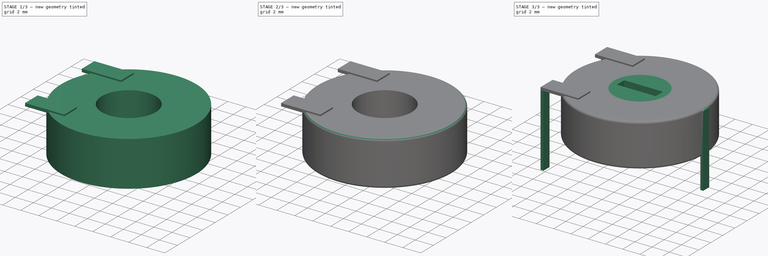
[diagram: build sequence overview — one tinted view per stage of 3, left to right]
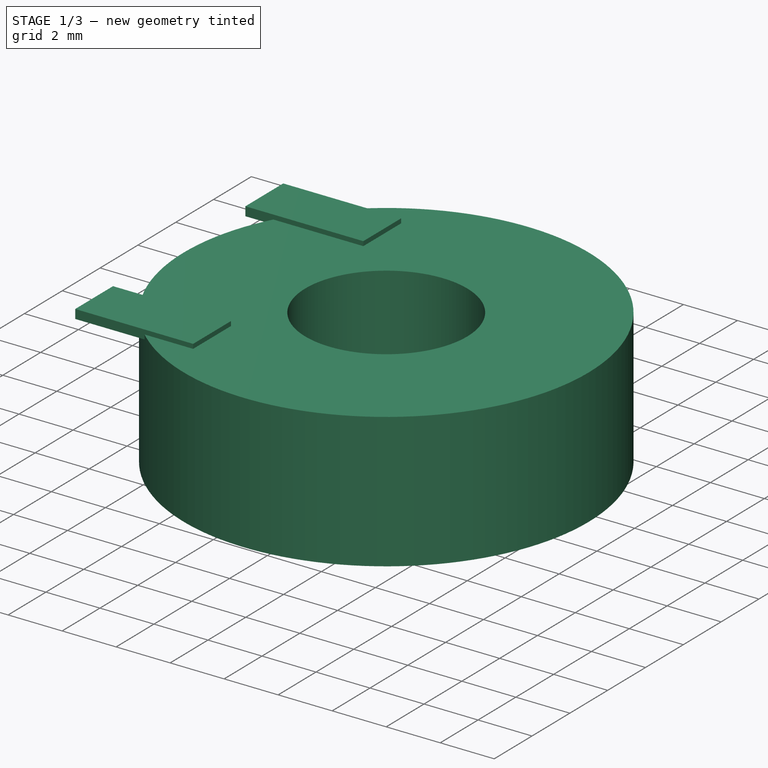
[diagram: stage 1 of 3 — iso view after this stage's code; geometry added in this stage tinted green]
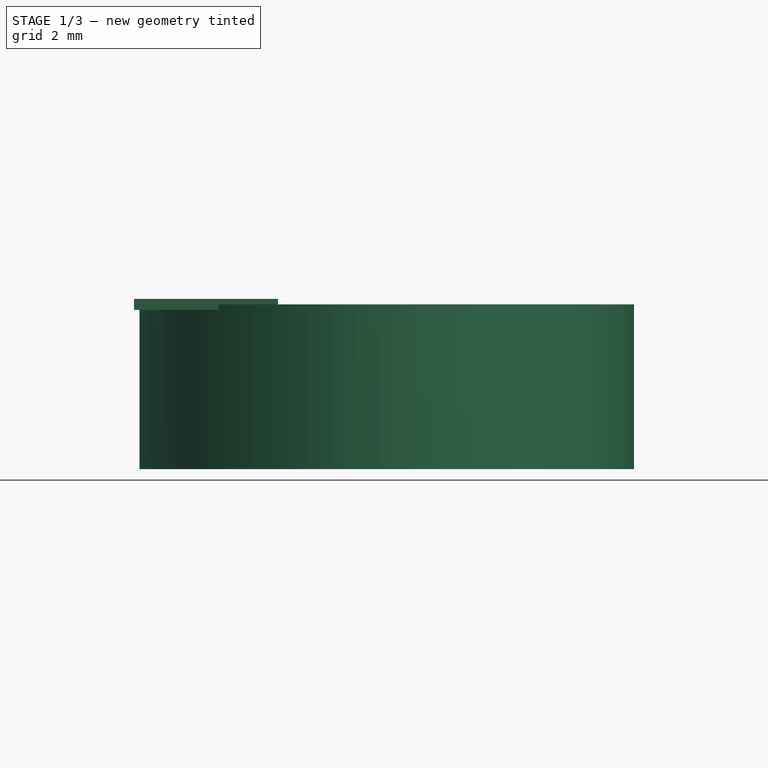
[diagram: stage 1 of 3 — front view after this stage's code; geometry added in this stage tinted green]
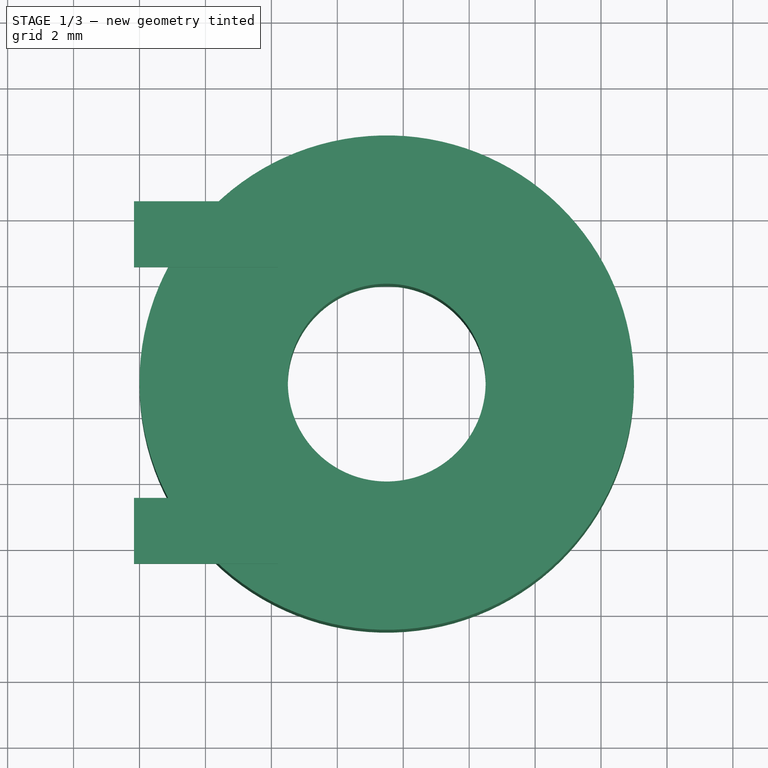
[diagram: stage 1 of 3 — top view after this stage's code; geometry added in this stage tinted green]
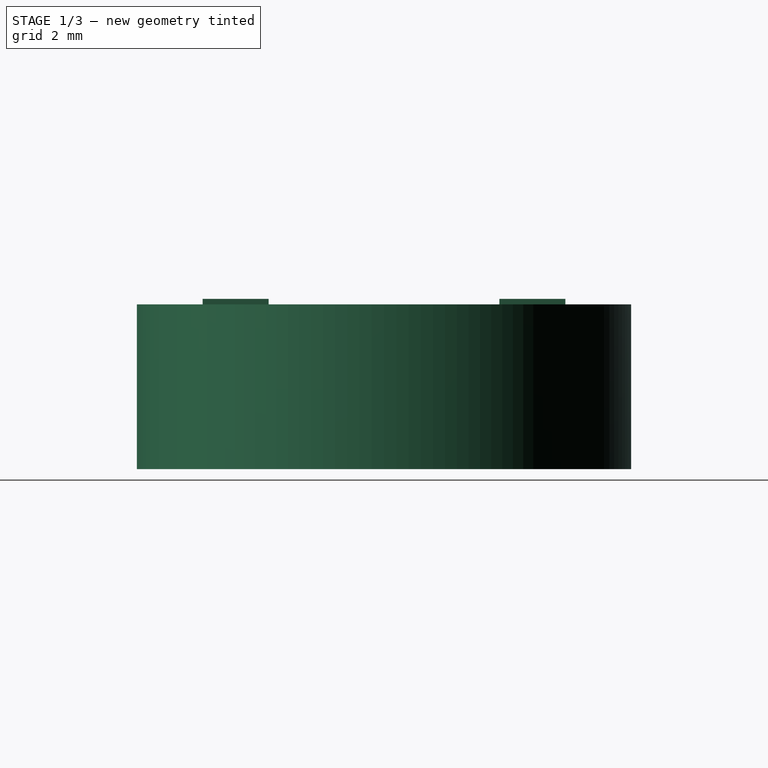
[diagram: stage 1 of 3 — right view after this stage's code; geometry added in this stage tinted green]
FCSTD DOCUMENT  (FreeCAD 0.16R6703 (Git))
Label: Potentiometer_Trimmer_Piher_PT-15v15_Horizontal_Px15.0mm_Py10.0mm
License: All rights reserved
LicenseURL: http://en.wikipedia.org/wiki/All_rights_reserved
objects: Sketcher::SketchObject×4, PartDesign::Pad×4, Spreadsheet::Sheet×1, PartDesign::Fillet×1
note: 13 computed .brp shape members not serialized (recipe doc carries the construction recipe); baked Part::Feature solids carry a one-line shape summary decoded from their .brp

FEATURE [Sketcher::SketchObject] Sketch
  Placement = pos=(0,10,0.5) rot=(0,0,1;0rad)
  expr: Placement.Base.y = 2 * Spreadsheet.rmy
  expr: Constraints[4] = Spreadsheet.rmy
  expr: Constraints[3] = Spreadsheet.clbody_fab
  expr: Constraints[2] = Spreadsheet.dscrew / 2
  expr: Constraints[0] = Spreadsheet.cdbody_fab / 2
  sketch-geometry (2):
    g0: Circle CenterX=7.5 CenterY=-5 CenterZ=0 NormalX=0 NormalY=0 NormalZ=1 Radius=7.5
    g1: Circle CenterX=7.5 CenterY=-5 CenterZ=0 NormalX=0 NormalY=0 NormalZ=1 Radius=3
  constraints (5):
    c: Radius(g0) = 7.5
    c: Coincident(g1,g0)
    c: Radius(g1) = 3
    c: DistanceX(g-1,g0) = 7.5
    c: DistanceY(g0,g-1) = 5
FEATURE [PartDesign::Pad] Pad
  Length = 5
  Length2 = 100
  Placement = pos=(0,10,0.5) rot=(0,0,1;0rad)
  Sketch = -> Sketch
  Type = 0
  expr: Length = Spreadsheet.height - 0.5
FEATURE [Sketcher::SketchObject] Sketch005
  Placement = pos=(0,10,5.33333) rot=(0,0,1;0rad)
  expr: Placement.Base.y = 2 * Spreadsheet.rmy
  expr: Constraints[8] = Spreadsheet.d_wire * 2
  expr: Constraints[24] = Spreadsheet.clbody_fab - Spreadsheet.dscrew * 0.55
  expr: Constraints[22] = Spreadsheet.rmy * 2 - Spreadsheet.d_wire
  expr: Constraints[10] = Spreadsheet.d_wire * 3 / 2
  expr: Constraints[9] = Spreadsheet.d_wire / 6
  expr: Constraints[23] = Spreadsheet.rmy * 2 - Spreadsheet.d_wire
  expr: Placement.Base.z = Spreadsheet.height - Spreadsheet.d_wire / 6
  sketch-geometry (9):
    g0: LineSegment StartX=-0.166667 StartY=0.5 StartZ=0 EndX=4.2 EndY=0.5 EndZ=0
    g1: LineSegment StartX=4.2 StartY=0.5 StartZ=0 EndX=4.2 EndY=-1.5 EndZ=0
    g2: LineSegment StartX=4.2 StartY=-1.5 StartZ=0 EndX=-0.166667 EndY=-1.5 EndZ=0
    g3: LineSegment StartX=-0.166667 StartY=-1.5 StartZ=0 EndX=-0.166667 EndY=0.5 EndZ=0
    g4: GeomPoint [constr] X=0 Y=0 Z=0
    g5: LineSegment StartX=-0.166667 StartY=-8.5 StartZ=0 EndX=4.2 EndY=-8.5 EndZ=0
    g6: LineSegment StartX=4.2 StartY=-8.5 StartZ=0 EndX=4.2 EndY=-10.5 EndZ=0
    g7: LineSegment StartX=4.2 StartY=-10.5 StartZ=0 EndX=-0.166667 EndY=-10.5 EndZ=0
    g8: LineSegment StartX=-0.166667 StartY=-10.5 StartZ=0 EndX=-0.166667 EndY=-8.5 EndZ=0
  constraints (25):
    c: Coincident(g0,g1)
    c: Coincident(g1,g2)
    c: Coincident(g2,g3)
    c: Coincident(g3,g0)
    c: Horizontal(g0)
    c: Horizontal(g2)
    c: Vertical(g1)
    c: Vertical(g3)
    c: DistanceY(g3,g3) = 2
    c: DistanceX(g0,g4) = 0.166667
    c: DistanceY(g2,g4) = 1.5
    c: Coincident(g4,g-1)
    c: Coincident(g5,g6)
    c: Coincident(g6,g7)
    c: Coincident(g7,g8)
    c: Coincident(g8,g5)
    c: Horizontal(g5)
    c: Horizontal(g7)
    c: Vertical(g6)
    c: Vertical(g8)
    c: DistanceX(g5,g2) = 0
    c: DistanceX(g1,g5) = 0
    c: DistanceY(g5,g0) = 9
    c: DistanceY(g7,g2) = 9
    c: DistanceX(g-1,g0) = 4.2
FEATURE [PartDesign::Pad] Pad004
  Length = 0.333333
  Length2 = 100
  Placement = pos=(0,10,5.33333) rot=(0,0,1;0rad)
  Sketch = -> Sketch005
  Type = 0
  expr: Length = Spreadsheet.d_wire / 3
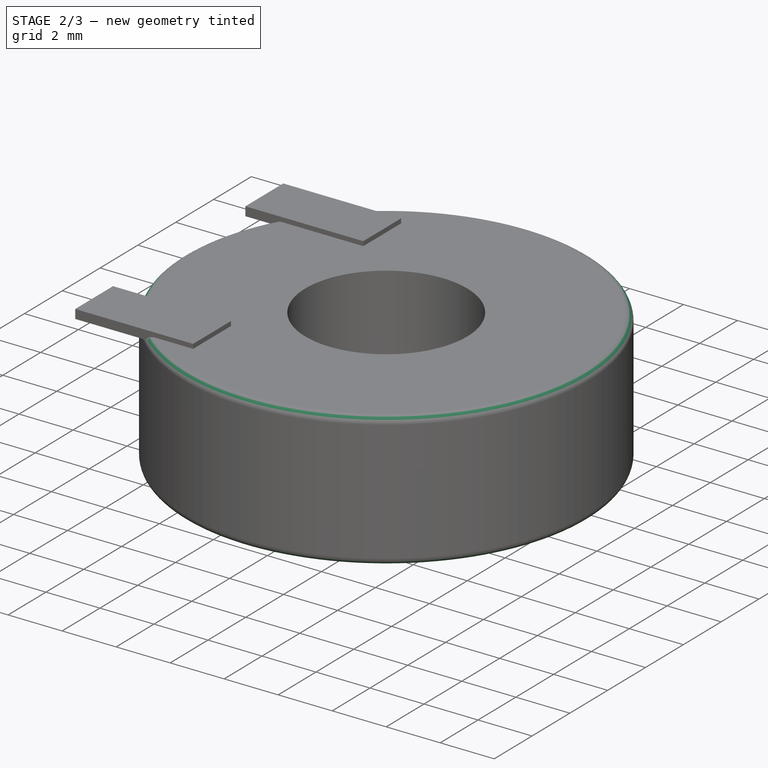
[diagram: stage 2 of 3 — iso view after this stage's code; geometry added in this stage tinted green]
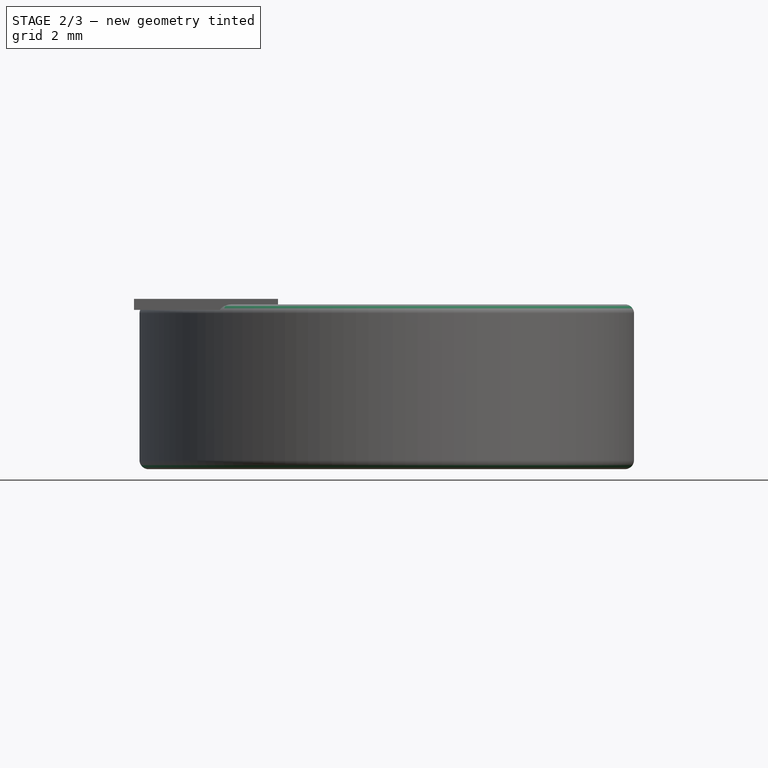
[diagram: stage 2 of 3 — front view after this stage's code; geometry added in this stage tinted green]
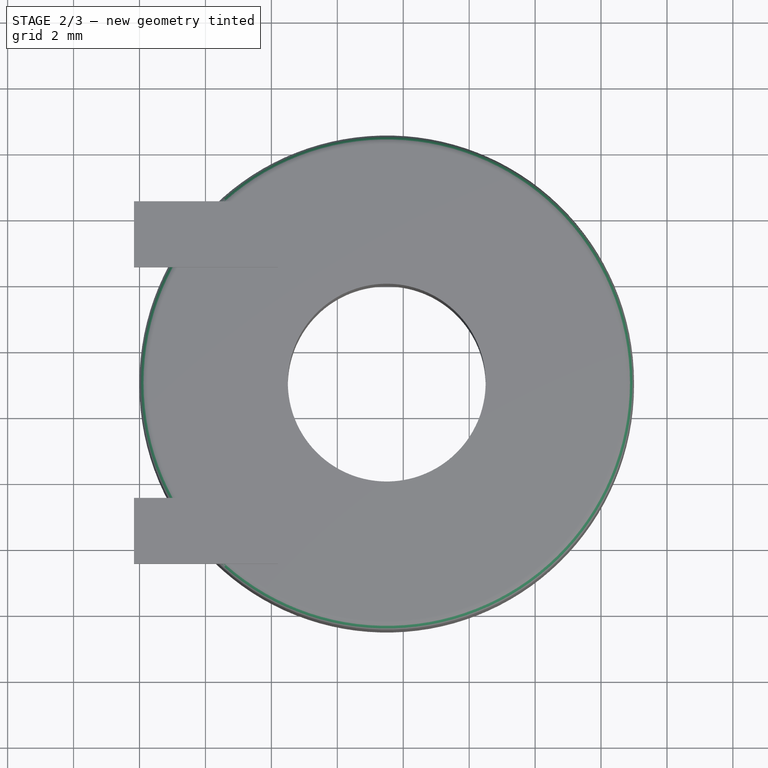
[diagram: stage 2 of 3 — top view after this stage's code; geometry added in this stage tinted green]
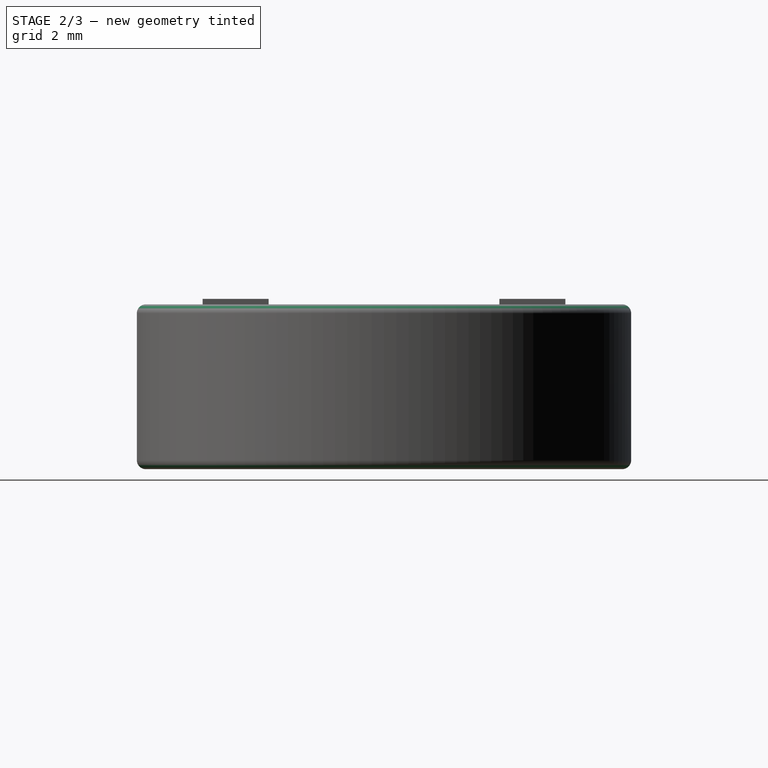
[diagram: stage 2 of 3 — right view after this stage's code; geometry added in this stage tinted green]
FEATURE [PartDesign::Fillet] Fillet
  Base = -> Pad [Edge2,Edge3]
  Placement = pos=(0,10,0.5) rot=(0,0,1;0rad)
  Radius = 0.275
  expr: Radius = Spreadsheet.height * 0.05
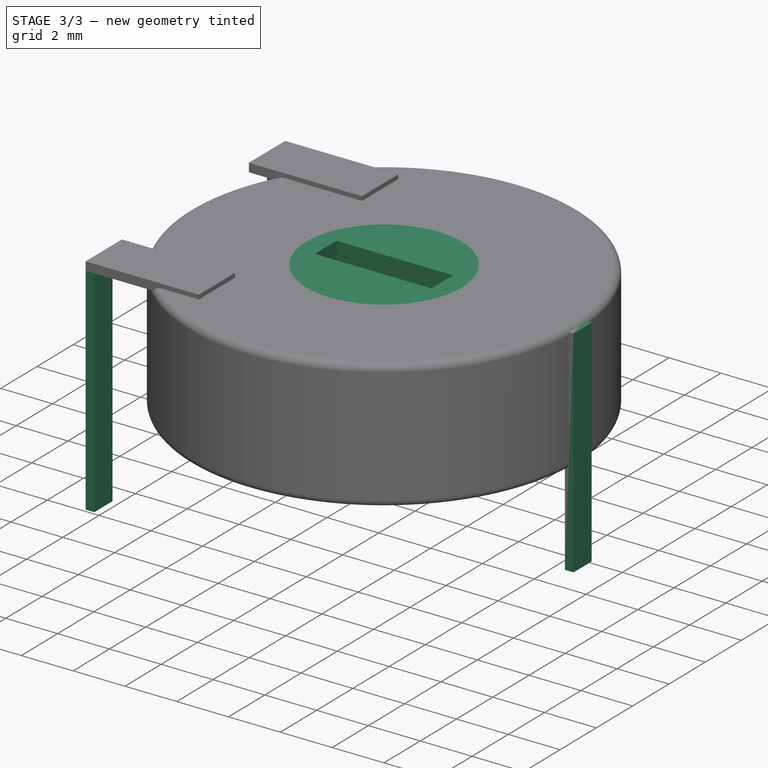
[diagram: stage 3 of 3 — iso view after this stage's code; geometry added in this stage tinted green]
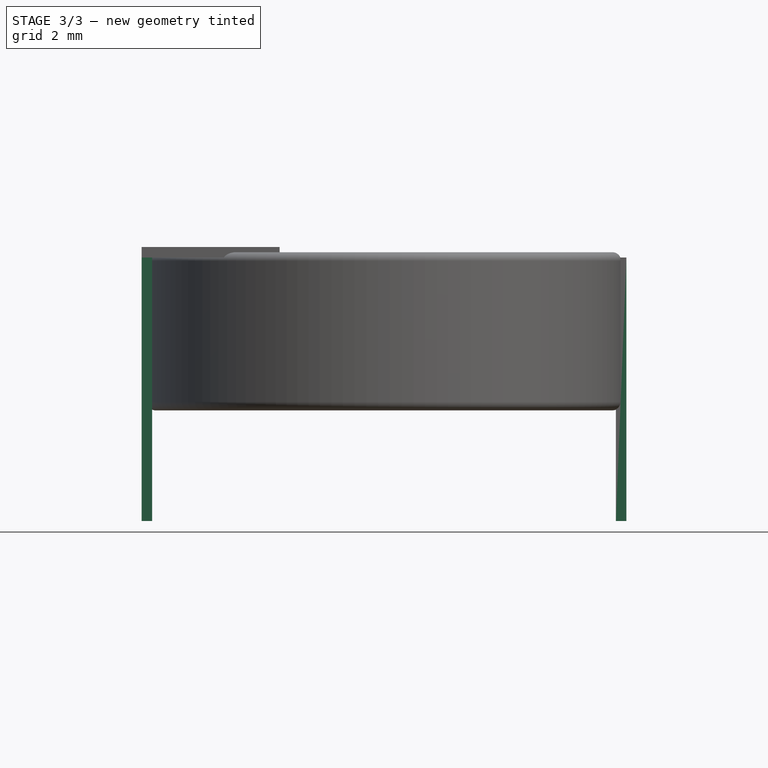
[diagram: stage 3 of 3 — front view after this stage's code; geometry added in this stage tinted green]
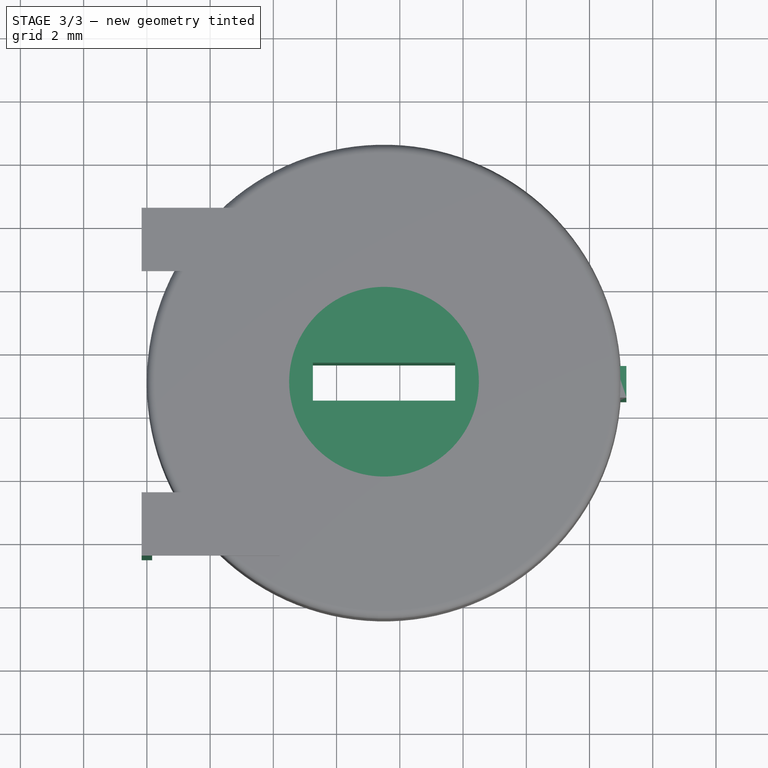
[diagram: stage 3 of 3 — top view after this stage's code; geometry added in this stage tinted green]
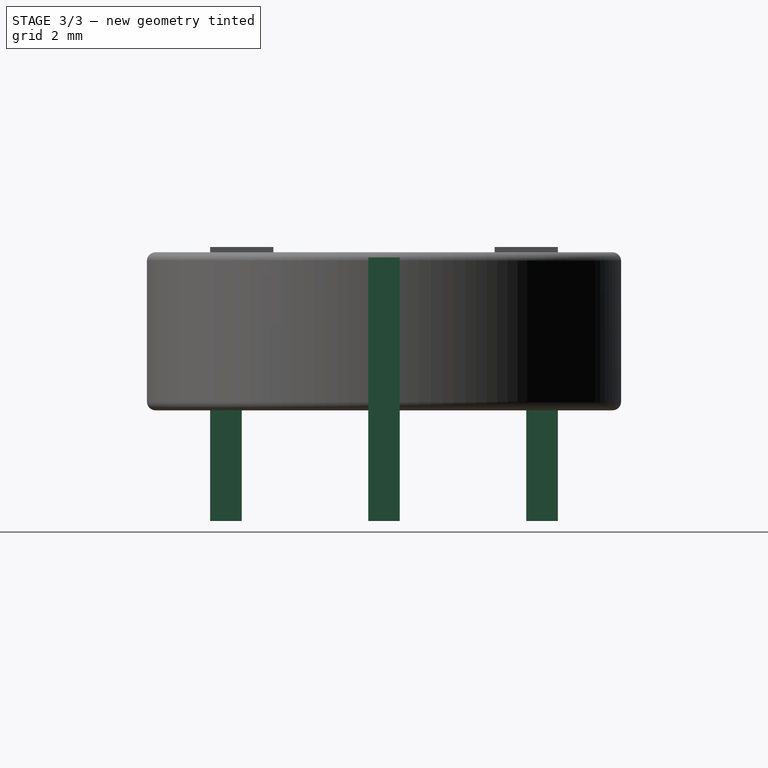
[diagram: stage 3 of 3 — right view after this stage's code; geometry added in this stage tinted green]
FEATURE [Spreadsheet::Sheet] Spreadsheet
  cells = A1=var lbody_fab = ; B1(lbody_fab)=0; A2=var tbody_fab = ; B2(tbody_fab)=7.5; A3=var wbody_fab = ; B3(wbody_fab)=0; A4=var hbody_fab = ; B4(hbody_fab)=15; A5=var clbody_fab = ; B5(clbody_fab)=7.5; A6=var ctbody_fab = ; B6(ctbody_fab)=15; A7=var cdbody_fab = ; B7(cdbody_fab)=15; A8=var dscrew = ; B8(dscrew)=6; A9=var dshaft = ; B9(dshaft)=4.4; A10=var rmx = ; B10(rmx)=15; A11=var rmy = ; B11(rmy)=5; A12=var padx = ; B12(padx)=0; A13=var pady = ; B13(pady)=10; A14=var d_wire = ; B14(d_wire)=1; A15=var height = ; B15(height)=5.5; A16=var mh_rmx = ; B16(mh_rmx)=0; A17=var mh_rmy = ; B17(mh_rmy)=15; A18=var offsetx = ; B18(offsetx)=0; A19=var offsety = ; B19(offsety)=-10
FEATURE [Sketcher::SketchObject] Sketch003
  Placement = pos=(0,10,0) rot=(0,0,1;0rad)
  expr: Constraints[23] = Spreadsheet.rmy
  expr: Constraints[22] = Spreadsheet.rmx
  expr: Constraints[35] = Spreadsheet.rmy * 2
  expr: Constraints[36] = Spreadsheet.rmy * 2
  expr: Constraints[24] = Spreadsheet.rmy
  expr: Constraints[8] = Spreadsheet.d_wire / 3
  expr: Placement.Base.y = 2 * Spreadsheet.rmy
  expr: Constraints[11] = Spreadsheet.d_wire / 2
  expr: Constraints[21] = Spreadsheet.rmx + Spreadsheet.d_wire / 3
  expr: Constraints[10] = Spreadsheet.d_wire / 6
  expr: Constraints[9] = Spreadsheet.d_wire
  sketch-geometry (13):
    g0: LineSegment StartX=-0.166667 StartY=0.5 StartZ=0 EndX=0.166667 EndY=0.5 EndZ=0
    g1: LineSegment StartX=0.166667 StartY=0.5 StartZ=0 EndX=0.166667 EndY=-0.5 EndZ=0
    g2: LineSegment StartX=0.166667 StartY=-0.5 StartZ=0 EndX=-0.166667 EndY=-0.5 EndZ=0
    g3: LineSegment StartX=-0.166667 StartY=-0.5 StartZ=0 EndX=-0.166667 EndY=0.5 EndZ=0
    g4: GeomPoint [constr] X=0 Y=0 Z=0
    g5: LineSegment StartX=15.1667 StartY=-4.5 StartZ=0 EndX=14.8333 EndY=-4.5 EndZ=0
    g6: LineSegment StartX=14.8333 StartY=-4.5 StartZ=0 EndX=14.8333 EndY=-5.5 EndZ=0
    g7: LineSegment StartX=14.8333 StartY=-5.5 StartZ=0 EndX=15.1667 EndY=-5.5 EndZ=0
    g8: LineSegment StartX=15.1667 StartY=-5.5 StartZ=0 EndX=15.1667 EndY=-4.5 EndZ=0
    g9: LineSegment StartX=-0.166667 StartY=-9.5 StartZ=0 EndX=0.166667 EndY=-9.5 EndZ=0
    g10: LineSegment StartX=0.166667 StartY=-9.5 StartZ=0 EndX=0.166667 EndY=-10.5 EndZ=0
    g11: LineSegment StartX=0.166667 StartY=-10.5 StartZ=0 EndX=-0.166667 EndY=-10.5 EndZ=0
    g12: LineSegment StartX=-0.166667 StartY=-10.5 StartZ=0 EndX=-0.166667 EndY=-9.5 EndZ=0
  constraints (37):
    c: Coincident(g0,g1)
    c: Coincident(g1,g2)
    c: Coincident(g2,g3)
    c: Coincident(g3,g0)
    c: Horizontal(g0)
    c: Horizontal(g2)
    c: Vertical(g1)
    c: Vertical(g3)
    c: DistanceX(g0,g0) = 0.333333
    c: DistanceY(g3,g3) = 1
    c: DistanceX(g0,g4) = 0.166667
    c: DistanceY(g2,g4) = 0.5
    c: Coincident(g5,g6)
    c: Coincident(g6,g7)
    c: Coincident(g7,g8)
    c: Coincident(g8,g5)
    c: Horizontal(g5)
    c: Horizontal(g7)
    c: Vertical(g6)
    c: Vertical(g8)
    c: Coincident(g4,g-1)
    c: DistanceX(g2,g5) = 15.3333
    c: DistanceX(g2,g5) = 15
    c: DistanceY(g5,g0) = 5
    c: DistanceY(g7,g1) = 5
    c: Coincident(g9,g10)
    c: Coincident(g10,g11)
    c: Coincident(g11,g12)
    c: Coincident(g12,g9)
    c: Horizontal(g9)
    c: Horizontal(g11)
    c: Vertical(g10)
    c: Vertical(g12)
    c: DistanceX(g9,g2) = 0
    c: DistanceX(g1,g9) = 0
    c: DistanceY(g9,g0) = 10
    c: DistanceY(g11,g2) = 10
FEATURE [PartDesign::Pad] Pad002
  Length = 5.33333
  Length2 = 3
  Placement = pos=(0,10,0) rot=(0,0,1;0rad)
  Sketch = -> Sketch003
  Type = 4
  expr: Length = Spreadsheet.height - Spreadsheet.d_wire / 6
FEATURE [Sketcher::SketchObject] Sketch004
  Placement = pos=(0,10,0.5) rot=(0,0,1;0rad)
  expr: Constraints[13] = Spreadsheet.dscrew * 0.1
  expr: Constraints[12] = Spreadsheet.dscrew * 0.2
  expr: Placement.Base.y = 2 * Spreadsheet.rmy
  expr: Constraints[11] = Spreadsheet.dscrew * 0.75
  expr: Constraints[0] = Spreadsheet.dscrew / 2
  expr: Constraints[14] = Spreadsheet.dscrew * 0.75 / 2
  expr: Constraints[2] = Spreadsheet.clbody_fab
  expr: Constraints[1] = Spreadsheet.rmy
  sketch-geometry (5):
    g0: Circle CenterX=7.5 CenterY=-5 CenterZ=0 NormalX=0 NormalY=0 NormalZ=1 Radius=3
    g1: LineSegment StartX=5.25 StartY=-4.4 StartZ=0 EndX=9.75 EndY=-4.4 EndZ=0
    g2: LineSegment StartX=9.75 StartY=-4.4 StartZ=0 EndX=9.75 EndY=-5.6 EndZ=0
    g3: LineSegment StartX=9.75 StartY=-5.6 StartZ=0 EndX=5.25 EndY=-5.6 EndZ=0
    g4: LineSegment StartX=5.25 StartY=-5.6 StartZ=0 EndX=5.25 EndY=-4.4 EndZ=0
  constraints (15):
    c: Radius(g0) = 3
    c: DistanceY(g0,g-1) = 5
    c: DistanceX(g-1,g0) = 7.5
    c: Coincident(g1,g2)
    c: Coincident(g2,g3)
    c: Coincident(g3,g4)
    c: Coincident(g4,g1)
    c: Horizontal(g1)
    c: Horizontal(g3)
    c: Vertical(g2)
    c: Vertical(g4)
    c: DistanceX(g1,g1) = 4.5
    c: DistanceY(g2,g2) = 1.2
    c: DistanceY(g0,g1) = 0.6
    c: DistanceX(g1,g0) = 2.25
FEATURE [PartDesign::Pad] Pad003
  Length = 5
  Length2 = 100
  Placement = pos=(0,10,0.5) rot=(0,0,1;0rad)
  Sketch = -> Sketch004
  Type = 0
  expr: Length = Spreadsheet.height - 0.5
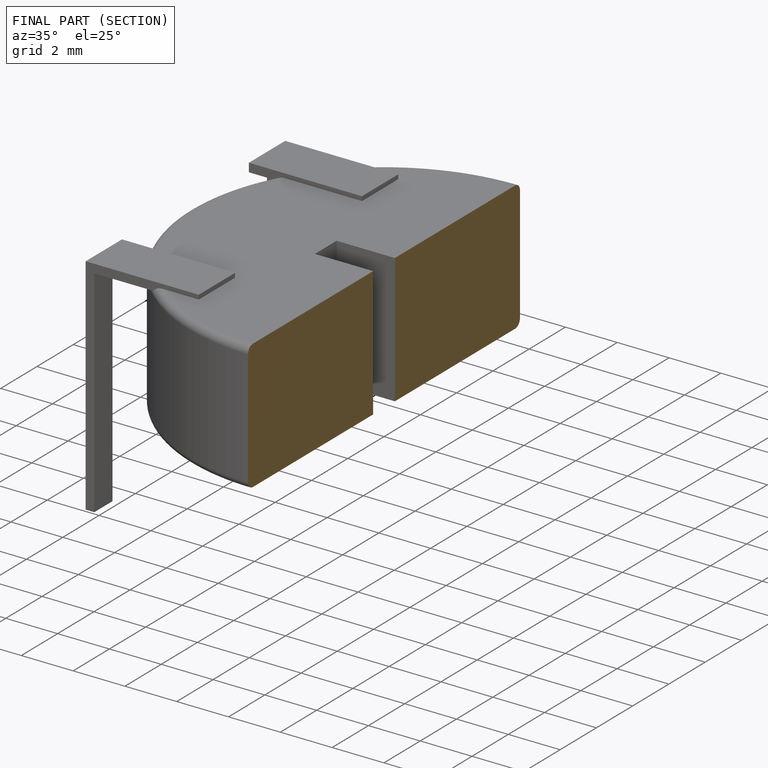
[diagram: finished part — half-section view (interior)]
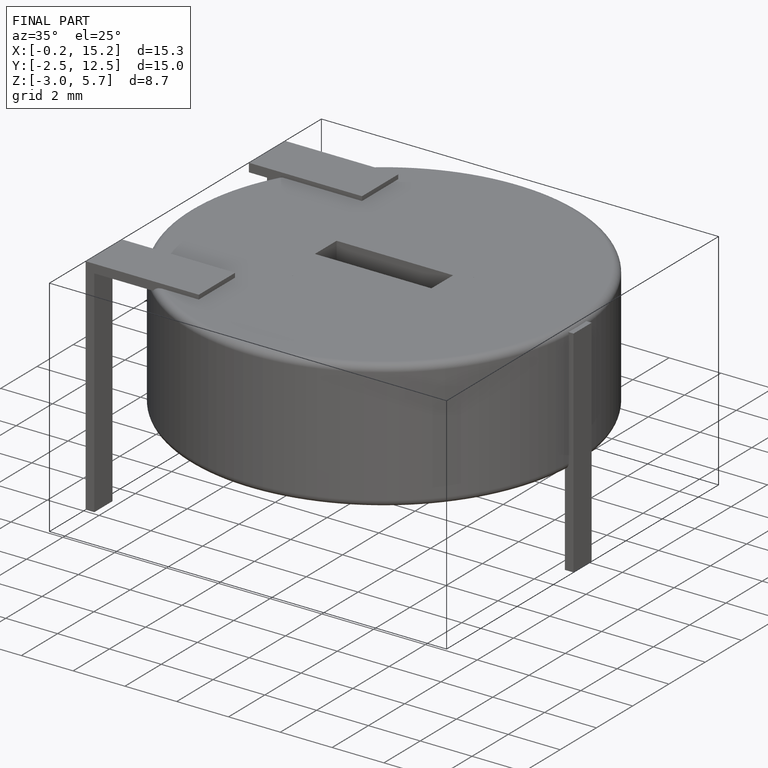
[diagram: finished part — iso view with bounding-box wireframe]
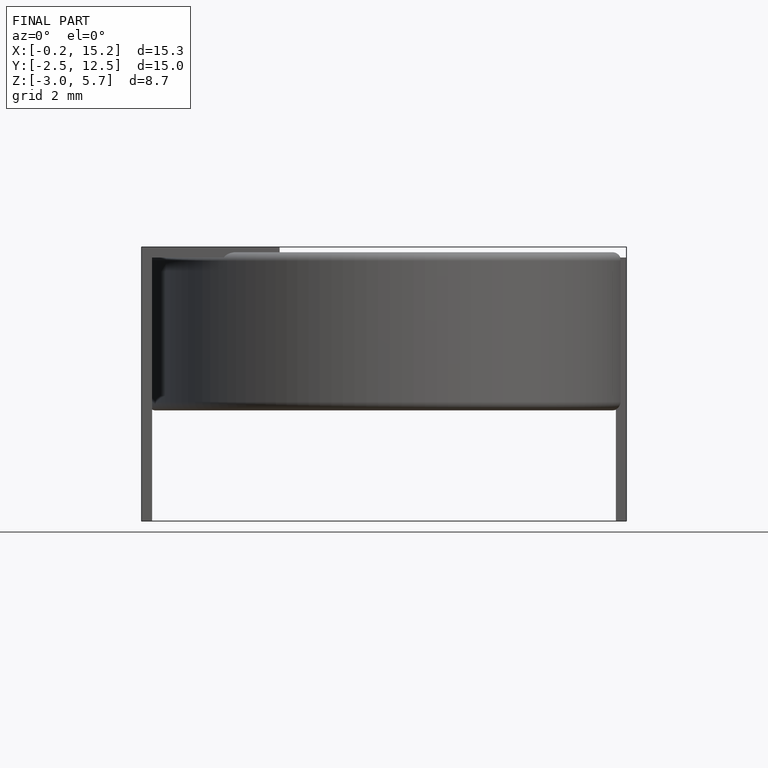
[diagram: finished part — front view with bounding-box wireframe]
